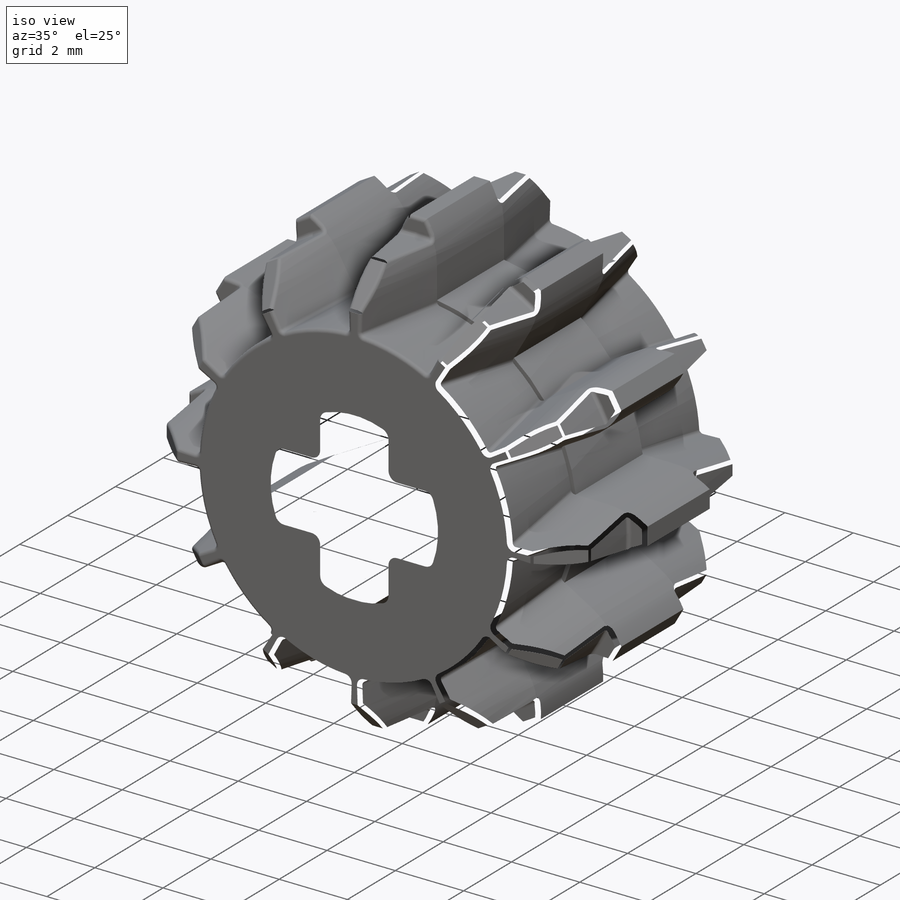
[diagram: iso view]
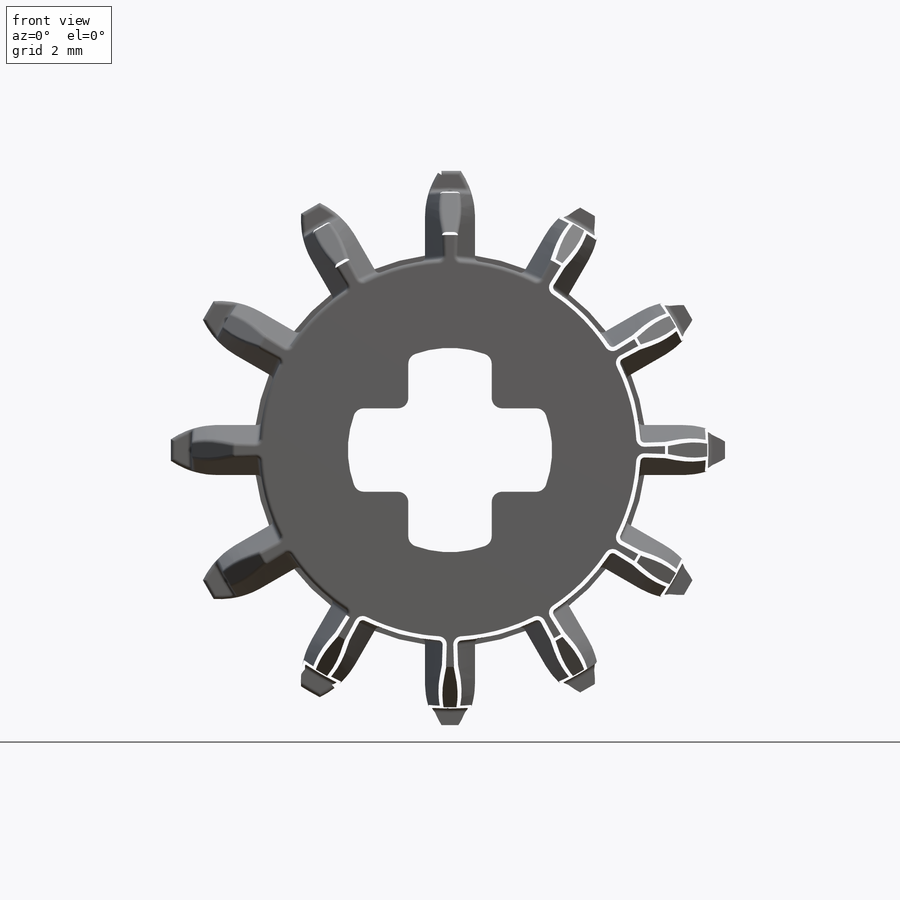
[diagram: front view]
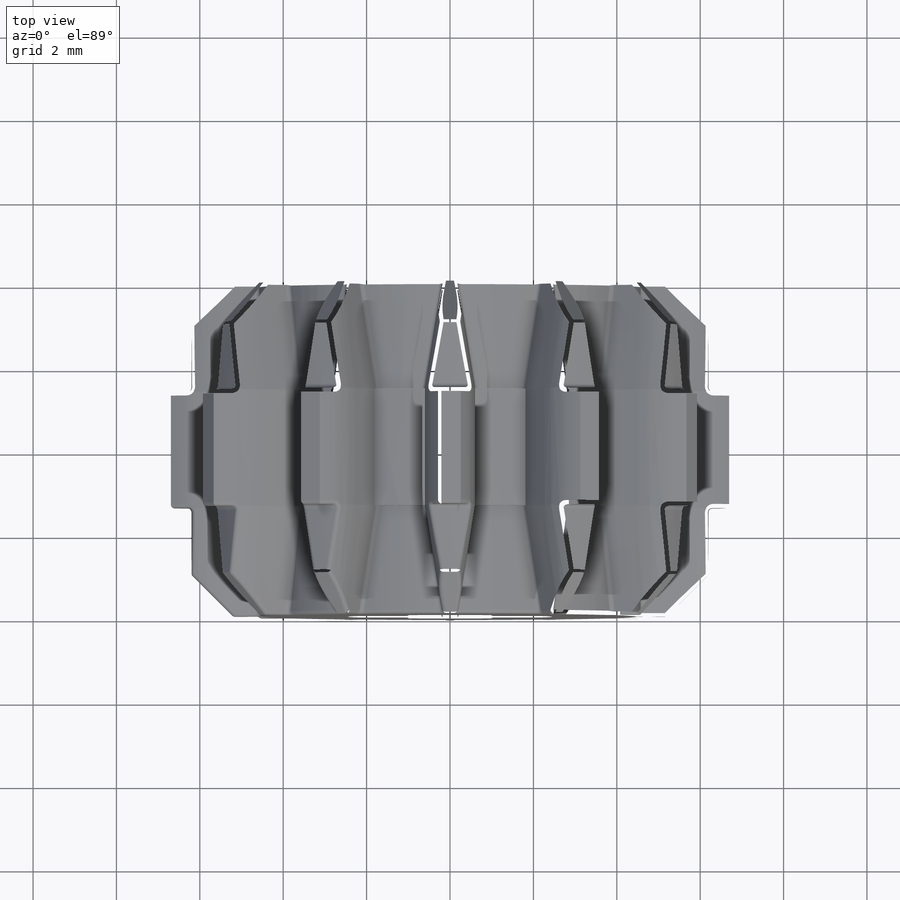
[diagram: top view]
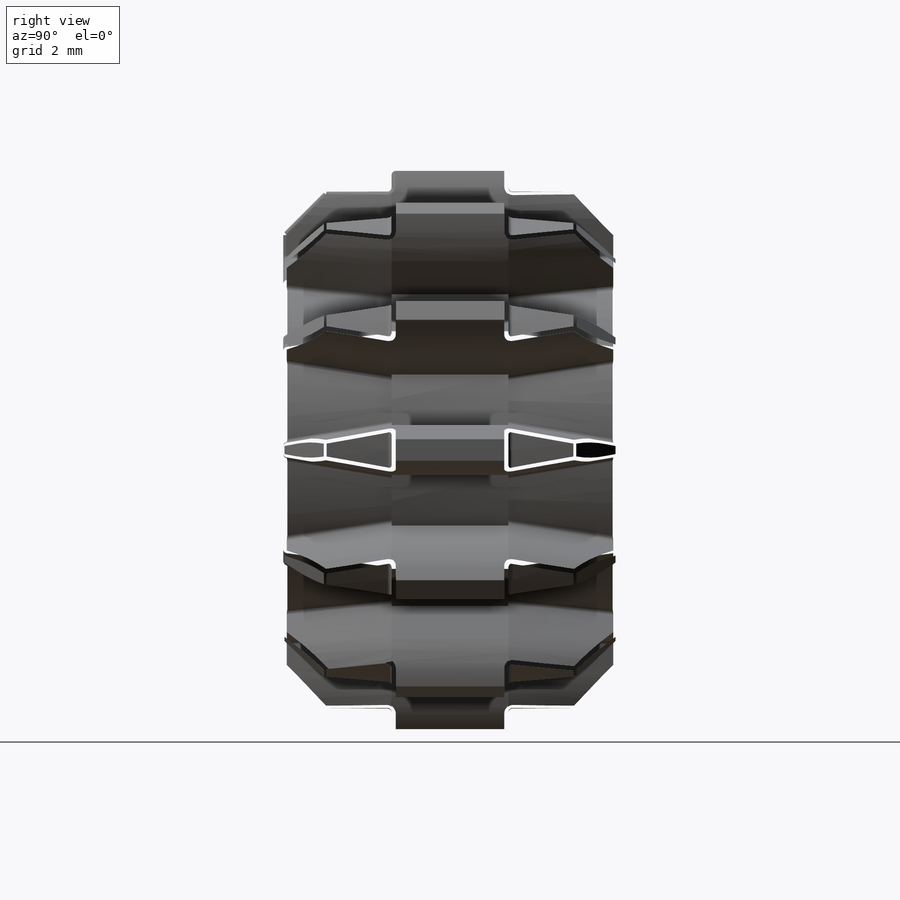
[diagram: right view]
SOLIDWORKS PART (.sldprt)
format: sldprt  version: not decoded by parser v0  size: 3,735,552 bytes
history: native  units: mm
features: fillet x7, sketch x6, plane x2, cut_extrude x2, pattern_circular x2, material x1, revolve x1, mirror x1 (+13 scaffold rows collapsed)
feature tree (35):
  scaffold x13  (default folders/planes/origin — collapsed)
  material  "Material <sin especificar>"
  sketch  "Sketch1"  dims[c1.D7=0.1mm c1.D1=~22.387005mm c1.D2=~11.546982mm c2.D1=6.7mm c2.D2=8.0mm c2.D3=1.4mm c2.D4=6.2mm c2.D5=~2.087059mm c3.D5=45.0deg c3.D6=5.2mm c3.D1=6.7mm]
  revolve  "Revolve1"  Angle=360deg
  plane  "Plane1"  Offset=4mm
  sketch  "Diameter"  dims[D1=13.4mm]
  sketch  "Sketch2"  dims[c1.D5=9.4mm c1.D6=11.5mm c1.D7=4.0mm c1.D8=4.0mm c1.D9=13.4mm c1.D3=2.0mm c2.D5=4.7mm c2.D9=2.0mm c2.D3=6.7mm c2.D1=6.7mm c3.D1=30.0deg c3.D2=6.7mm c4.D2=30.0deg c4.D3=0.6mm c4.D4=0.6mm c4.D8=1.2mm c4.D9=~4.000916mm]
  cut_extrude  "Cut-Extrude1"  Depth=10mm
  pattern_circular  "CirPattern1"  Count=12 Angle=360deg
  plane  "Plane2"  Offset=0mm
  sketch  "Sketch3"  dims[c1.D1=9.15mm c1.D2=11.5mm c1.D3=4.0mm c1.D4=4.0mm c2.D1=4.575mm c2.D4=0.1mm c2.D5=~0.018862mm c2.D3=~1.188629mm]
  sketch  "Sketch4"  dims[c1.D1=9.15mm c1.D2=4.0mm c1.D4=4.575mm c1.D5=0.1mm c2.D1=~6.533744mm c3.D1=13.0deg c3.D3=0.25mm c3.D4=~1.119728mm]
  pattern_circular  "CirPattern3"  Count=12 Angle=360deg
  mirror  "Mirror1"
  fillet  "Fillet1"  Radius=0.1mm
  fillet  "Fillet2"  Radius=0.1mm
  fillet  "Fillet4"  Radius=0.1mm
  fillet  "Fillet5"  Radius=0.1mm
  fillet  "Fillet6"  Radius=0.1mm
  fillet  "Fillet7"  Radius=0.1mm
  sketch  "Sketch5"  dims[D1=4.7mm D6=0.35mm D7=0.15mm D2=0.9mm D3=1.8mm D4=0.9mm D5=1.8mm]
  cut_extrude  "Cut-Extrude2"  [1 undecoded]
  fillet  "Fillet8"  Radius=0.1mm
decode coverage: 17 of 19 modeling features carry decoded parameters
note: ~ marks probable driven/reference dimensions
note: 1 parameter value undecoded
note: suppression state not decoded; provenance and decode notes live in map.json
